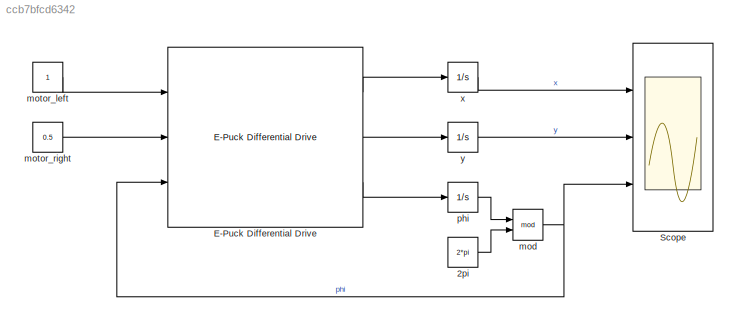
MODEL slx_ccb7bfcd6342
KIND model
CONFIG AbsTol = auto
CONFIG FixedStep = 0.001
CONFIG MaxStep = auto
CONFIG MinStep = auto
CONFIG RelTol = 1e-3
CONFIG SampleTimeConstraint = Unconstrained
CONFIG Solver = FixedStepAuto
CONFIG SolverMode = Auto
CONFIG SolverName = FixedStepAuto
CONFIG StartTime = 0.0
CONFIG StopTime = 100
BLOCK [Constant] 2pi
  Value = 2*pi
BLOCK [Reference] E-Puck Differential Drive  REF=tinbot/E-Puck Differential Drive  (lib defined in slx_3c5c153e9850, slx_5b2796442827, +1 more)
  Ports = [3, 3]
  SourceBlock = tinbot/E-Puck Differential Drive
BLOCK [Scope] Scope
  NumInputPorts = 3
  Ports = [3]
  ScopeSpecificationString = Simulink.scopes.TimeScopeBlockCfg('CurrentConfiguration', extmgr.ConfigurationSet(extmgr.Configuration('Core','General UI',true),extmgr.Configuration('Core','Source UI',true),extmgr.Configuration('Sources','WiredSimulink',true),extmgr.Configuration('Visuals','Time Domain',true,'SerializedDisplays',{struct('MinYLimReal','-9.9375','MaxYLimReal','9.9375','YLabelReal','','MinYLimMag','0.00000','MaxYLi...<+2753ch>
BLOCK [Math] mod
  Operator = mod
  Ports = [2, 1]
BLOCK [Constant] motor_left
BLOCK [Constant] motor_right
  Value = 0.5
BLOCK [Integrator] phi
  Ports = [1, 1]
BLOCK [Integrator] x
  Ports = [1, 1]
BLOCK [Integrator] y
  Ports = [1, 1]
LINE 2pi:1 -> mod:2
LINE E-Puck Differential Drive:1 -> x:1
LINE E-Puck Differential Drive:2 -> y:1
LINE E-Puck Differential Drive:3 -> phi:1
NET mod:1 -> E-Puck Differential Drive:3, Scope:3
LINE motor_left:1 -> E-Puck Differential Drive:1
LINE motor_right:1 -> E-Puck Differential Drive:2
LINE phi:1 -> mod:1
LINE x:1 -> Scope:1
LINE y:1 -> Scope:2
note: NET lines group one-source signal fan-out (src -> all destinations, sorted); 1:1 wires keep LINE
